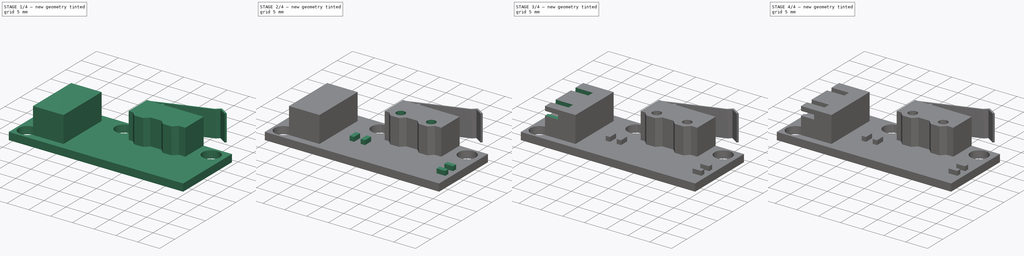
[diagram: build sequence overview — one tinted view per stage of 4, left to right]
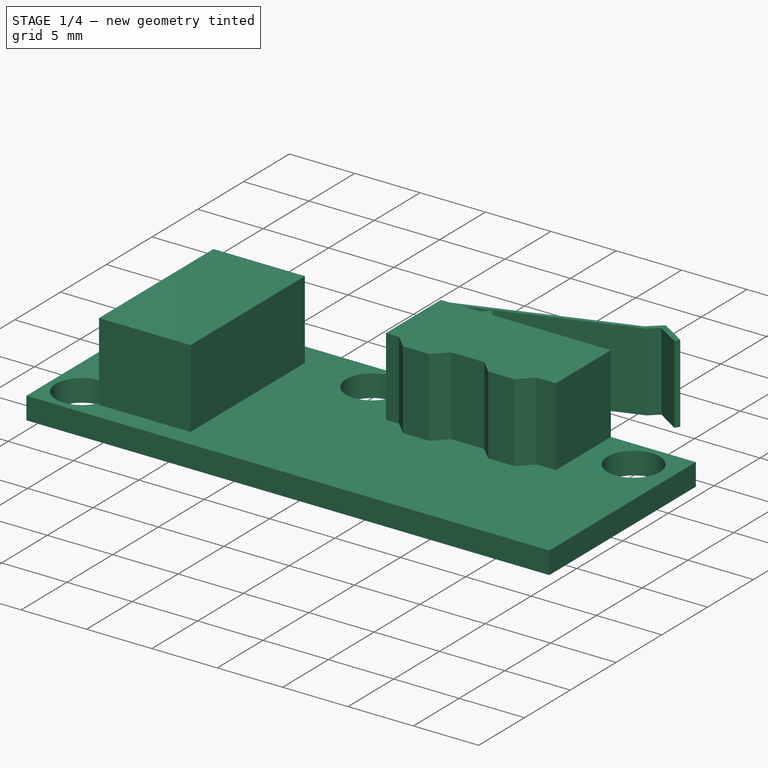
[diagram: stage 1 of 4 — iso view after this stage's code; geometry added in this stage tinted green]
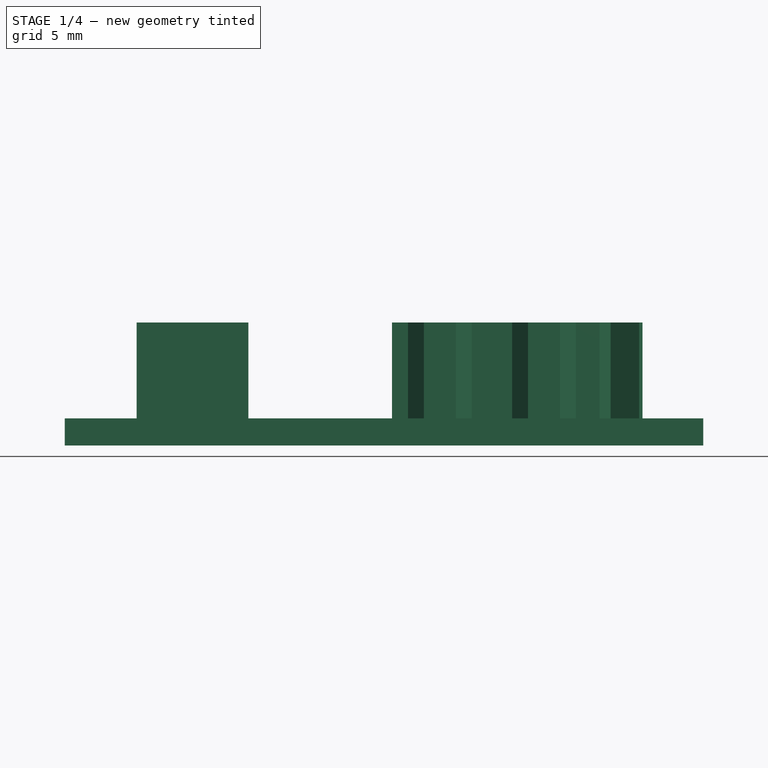
[diagram: stage 1 of 4 — front view after this stage's code; geometry added in this stage tinted green]
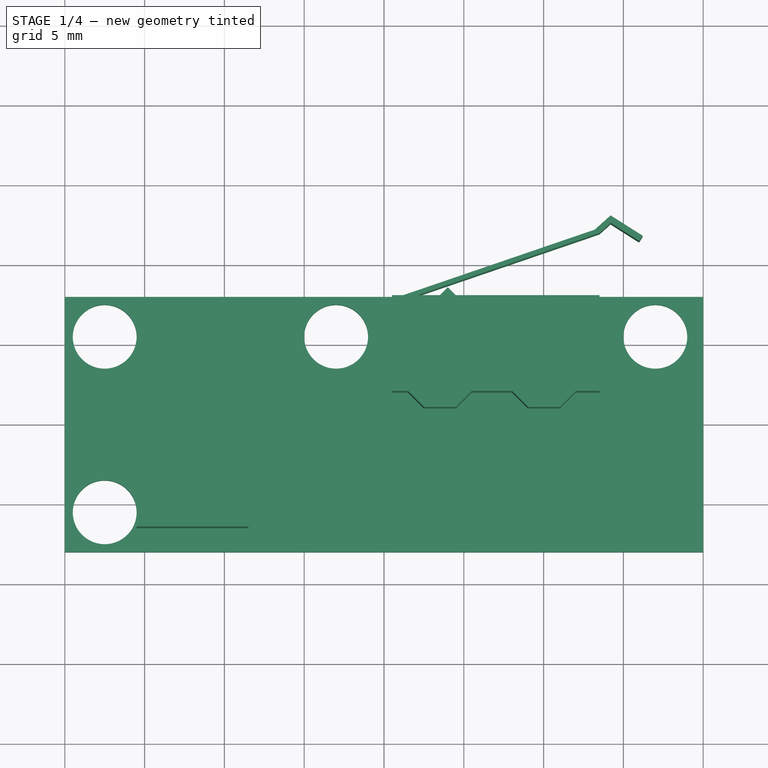
[diagram: stage 1 of 4 — top view after this stage's code; geometry added in this stage tinted green]
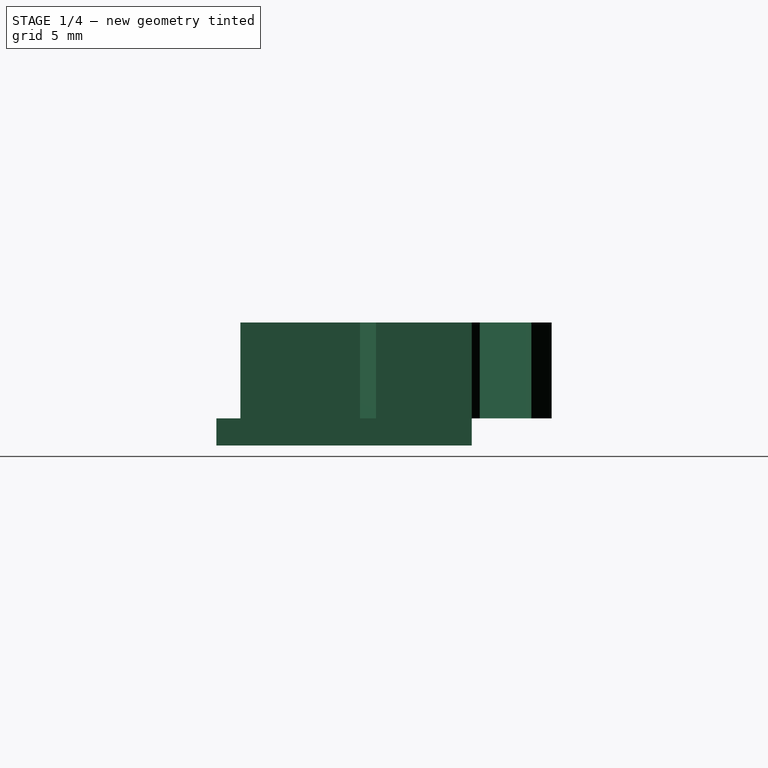
[diagram: stage 1 of 4 — right view after this stage's code; geometry added in this stage tinted green]
FCSTD DOCUMENT  (FreeCAD 0.15R4671 (Git))
Label: endstop-v1-2-makerbot
License: All rights reserved
LicenseURL: http://fr.wikipedia.org/wiki/<copyright redacted>
objects: Sketcher::SketchObject×9, PartDesign::Pad×4, PartDesign::Pocket×4, Part::FeaturePython×1
note: 26 computed .brp shape members not serialized (recipe doc carries the construction recipe); baked Part::Feature solids carry a one-line shape summary decoded from their .brp

FEATURE [Sketcher::SketchObject] Sketch
  sketch-geometry (8):
    g0: LineSegment StartX=-20 StartY=8 StartZ=0 EndX=20 EndY=8 EndZ=0
    g1: LineSegment StartX=20 StartY=8 StartZ=0 EndX=20 EndY=-8 EndZ=0
    g2: LineSegment StartX=20 StartY=-8 StartZ=0 EndX=-20 EndY=-8 EndZ=0
    g3: LineSegment StartX=-20 StartY=-8 StartZ=0 EndX=-20 EndY=8 EndZ=0
    g4: Circle CenterX=-17.5 CenterY=5.5 CenterZ=0 NormalX=0 NormalY=0 NormalZ=1 Radius=2
    g5: Circle CenterX=-17.5 CenterY=-5.5 CenterZ=0 NormalX=0 NormalY=0 NormalZ=1 Radius=2
    g6: Circle CenterX=-3 CenterY=5.5 CenterZ=0 NormalX=0 NormalY=0 NormalZ=1 Radius=2
    g7: Circle CenterX=17 CenterY=5.5 CenterZ=0 NormalX=0 NormalY=0 NormalZ=1 Radius=2
  constraints (24):
    c: Coincident(g0,g1)
    c: Coincident(g1,g2)
    c: Coincident(g2,g3)
    c: Coincident(g3,g0)
    c: Horizontal(g0)
    c: Horizontal(g2)
    c: Vertical(g1)
    c: Vertical(g3)
    c: DistanceX(g0,g0) = 40
    c: DistanceX(g-1,g0) = -20
    c: DistanceY(g2,g0) = 16
    c: DistanceY(g-1,g0) = 8
    c: Equal(g4,g5)
    c: Equal(g5,g6)
    c: Equal(g6,g7)
    c: Radius(g7) = 2
    c: DistanceY(g-1,g4) = 5.5
    c: DistanceY(g-1,g6) = 5.5
    c: DistanceY(g-1,g7) = 5.5
    c: DistanceX(g-1,g4) = -17.5
    c: DistanceX(g-1,g5) = -17.5
    c: DistanceX(g6,g7) = 20
    c: DistanceX(g-1,g7) = 17
    c: DistanceY(g-1,g5) = -5.5
FEATURE [PartDesign::Pad] Pad  label="CI"
  Length = 1.7
  Length2 = 100
  Sketch = -> Sketch
  Type = 0
FEATURE [Sketcher::SketchObject] Sketch001
  Placement = pos=(0,0,1.7) rot=(0,0,1;0rad)
  Support = -> Pad [Face10]
  sketch-geometry (27):
    g0: LineSegment StartX=13.5 StartY=8 StartZ=0 EndX=13.5 EndY=2 EndZ=0
    g1: LineSegment StartX=0.5 StartY=2 StartZ=0 EndX=0.5 EndY=8 EndZ=0
    g2: LineSegment StartX=-15.5 StartY=6 StartZ=0 EndX=-8.5 EndY=6 EndZ=0
    g3: LineSegment StartX=-8.5 StartY=6 StartZ=0 EndX=-8.5 EndY=-6.5 EndZ=0
    g4: LineSegment StartX=-8.5 StartY=-6.5 StartZ=0 EndX=-15.5 EndY=-6.5 EndZ=0
    g5: LineSegment StartX=0.5 StartY=8 StartZ=0 EndX=1.2 EndY=8 EndZ=0
    g6: LineSegment StartX=1.2 StartY=8 StartZ=0 EndX=13.2 EndY=12.1053 EndZ=0
    g7: LineSegment StartX=13.2 StartY=12.1053 StartZ=0 EndX=14.2 EndY=13 EndZ=0
    g8: LineSegment StartX=14.2 StartY=13 StartZ=0 EndX=16.2 EndY=11.7314 EndZ=0
    g9: LineSegment StartX=15.9857 StartY=11.3936 StartZ=0 EndX=14.2 EndY=12.5263 EndZ=0
    g10: LineSegment StartX=14.2 StartY=12.5263 StartZ=0 EndX=13.5 EndY=11.9 EndZ=0
    g11: LineSegment StartX=13.5 StartY=8 StartZ=0 EndX=4.5 EndY=8 EndZ=0
    g12: LineSegment StartX=4.5 StartY=8 StartZ=0 EndX=4 EndY=8.5 EndZ=0
    g13: LineSegment StartX=4 StartY=8.5 StartZ=0 EndX=3.5 EndY=8 EndZ=0
    g14: LineSegment StartX=13.5 StartY=11.9 StartZ=0 EndX=2.1 EndY=8 EndZ=0
    g15: LineSegment StartX=3.5 StartY=8 StartZ=0 EndX=2.1 EndY=8 EndZ=0
    g16: LineSegment StartX=15.9857 StartY=11.3936 StartZ=0 EndX=16.2 EndY=11.7314 EndZ=0
    g17: LineSegment StartX=0.5 StartY=2 StartZ=0 EndX=1.5 EndY=2 EndZ=0
    g18: LineSegment StartX=1.5 StartY=2 StartZ=0 EndX=2.5 EndY=1 EndZ=0
    g19: LineSegment StartX=2.5 StartY=1 StartZ=0 EndX=4.5 EndY=1 EndZ=0
    g20: LineSegment StartX=4.5 StartY=1 StartZ=0 EndX=5.5 EndY=2 EndZ=0
    g21: LineSegment StartX=5.5 StartY=2 StartZ=0 EndX=8.02409 EndY=2 EndZ=0
    g22: LineSegment StartX=8.02409 StartY=2 StartZ=0 EndX=9.02409 EndY=1 EndZ=0
    g23: LineSegment StartX=9.02409 StartY=1 StartZ=0 EndX=11.0241 EndY=1 EndZ=0
    g24: LineSegment StartX=11.0241 StartY=1 StartZ=0 EndX=12.0241 EndY=2 EndZ=0
    g25: LineSegment StartX=12.0241 StartY=2 StartZ=0 EndX=13.5 EndY=2 EndZ=0
    g26: LineSegment StartX=-15.5 StartY=6 StartZ=0 EndX=-15.5 EndY=-6.5 EndZ=0
  constraints (79):
    c: Vertical(g0)
    c: Vertical(g1)
    c: Coincident(g2,g3)
    c: Coincident(g3,g4)
    c: Horizontal(g2)
    c: Horizontal(g4)
    c: Vertical(g3)
    c: DistanceX(g2,g2) = 7
    c: DistanceY(g4,g2) = 12.5
    c: DistanceY(g0,g0) = -6
    c: DistanceY(g-1,g1) = 8
    c: DistanceX(g-1,g1) = 0.5
    c: DistanceX(g-1,g3) = -8.5
    c: DistanceY(g-1,g3) = -6.5
    c: DistanceX(g1,g0) = 13
    c: Coincident(g5,g1)
    c: Horizontal(g5)
    c: DistanceX(g1,g5) = 0.7
    c: Coincident(g6,g5)
    c: Coincident(g7,g6)
    c: Coincident(g8,g7)
    c: Coincident(g11,g0)
    c: Horizontal(g11)
    c: DistanceX(g11,g0) = 9
    c: Coincident(g13,g12)
    c: Coincident(g14,g10)
    c: Coincident(g15,g13)
    c: Horizontal(g15)
    c: Coincident(g15,g14)
    c: DistanceY(g14,g1) = -6
    c: Parallel(g6,g14)
    c: Parallel(g9,g8)
    c: Parallel(g7,g10)
    c: Coincident(g10,g9)
    c: DistanceY(g7,g0) = -5
    c: DistanceX(g5,g7) = 13
    c: DistanceY(g1,g1) = -6
    c: DistanceX(g7,g8) = 2
    c: Coincident(g16,g9)
    c: Coincident(g16,g8)
    c: Perpendicular(g8,g16)
    c: Distance(g9,g8) = 0.4
    c: DistanceX(g13,g12) = 0.5
    c: DistanceX(g12,g11) = 0.5
    c: DistanceY(g12,g11) = -0.5
    c: DistanceX(g5,g9) = 13
    c: DistanceX(g14,g13) = 1.4
    c: DistanceX(g14,g10) = 11.4
    c: DistanceX(g5,g6) = 12
    c: DistanceY(g10,g0) = -3.9
    c: Coincident(g17,g1)
    c: Horizontal(g17)
    c: Coincident(g18,g17)
    c: Coincident(g19,g18)
    c: Horizontal(g19)
    c: Coincident(g20,g19)
    c: Coincident(g21,g20)
    c: Horizontal(g21)
    c: Coincident(g22,g21)
    c: Coincident(g23,g22)
    c: Horizontal(g23)
    c: Coincident(g24,g23)
    c: Coincident(g25,g24)
    c: Coincident(g25,g0)
    c: Horizontal(g25)
    c: Equal(g22,g24)
    c: Equal(g24,g20)
    c: Equal(g20,g18)
    c: Equal(g19,g23)
    c: DistanceX(g18,g19) = 2
    c: DistanceY(g17,g18) = -1
    c: DistanceX(g17,g18) = 1
    c: DistanceY(g19,g20) = 1
    c: DistanceY(g21,g22) = -1
    c: DistanceY(g24,g23) = -1
    c: DistanceX(g-1,g17) = 1.5
    c: Coincident(g26,g2)
    c: Vertical(g26)
    c: Coincident(g26,g4)
FEATURE [PartDesign::Pad] Pad001  label="Connect-Switch"
  Length = 6
  Length2 = 100
  Sketch = -> Sketch001
  Type = 0
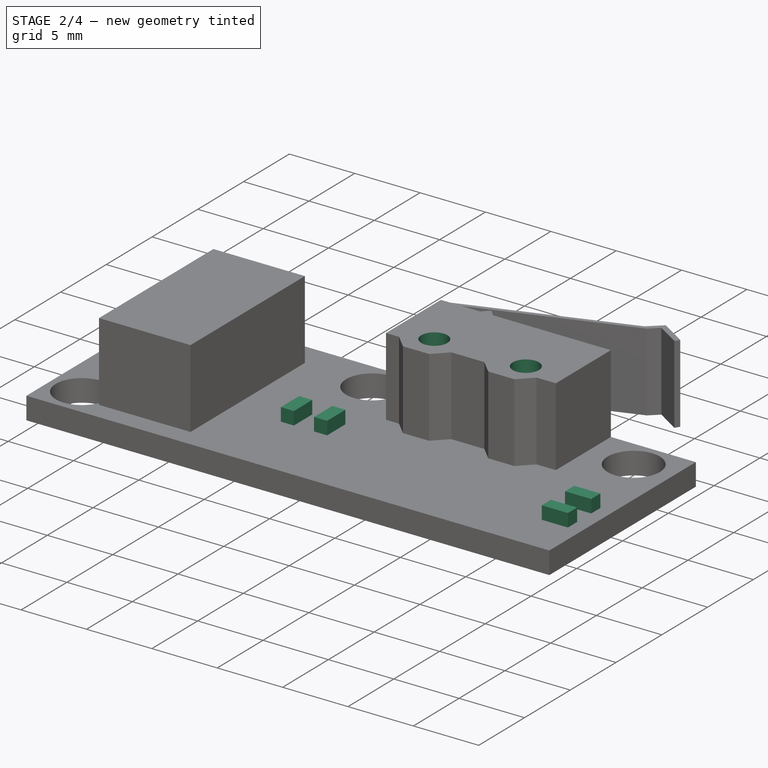
[diagram: stage 2 of 4 — iso view after this stage's code; geometry added in this stage tinted green]
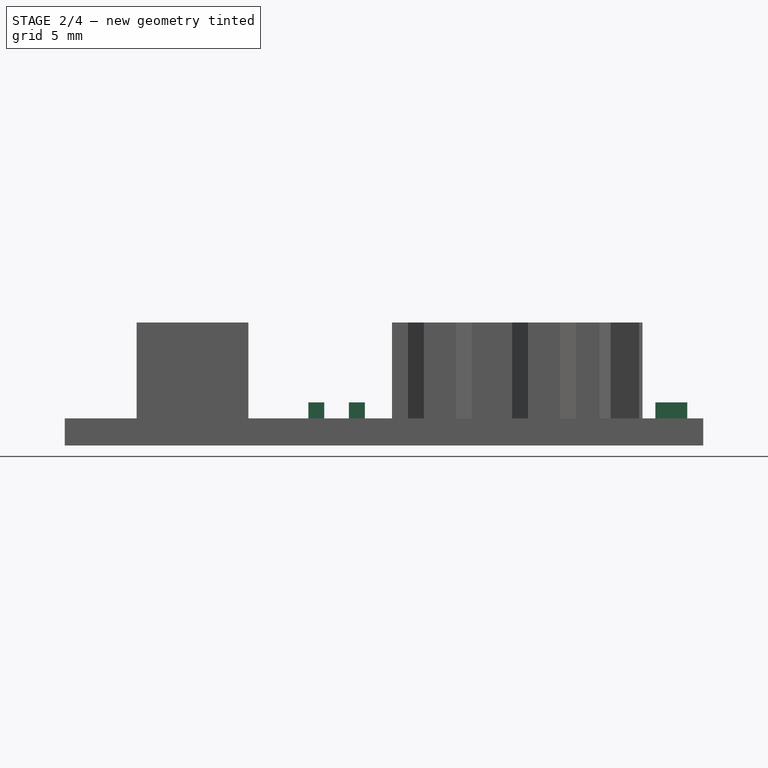
[diagram: stage 2 of 4 — front view after this stage's code; geometry added in this stage tinted green]
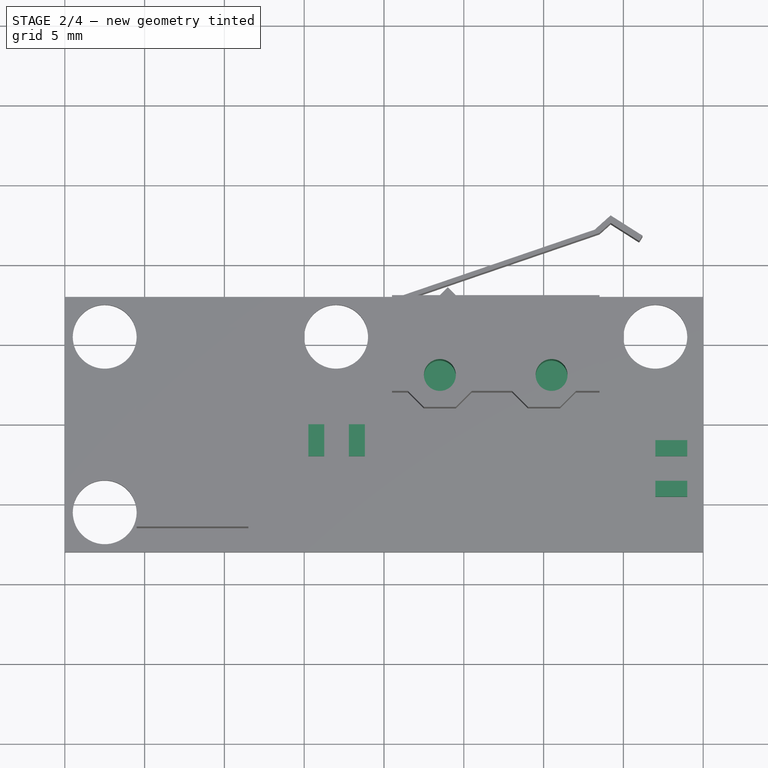
[diagram: stage 2 of 4 — top view after this stage's code; geometry added in this stage tinted green]
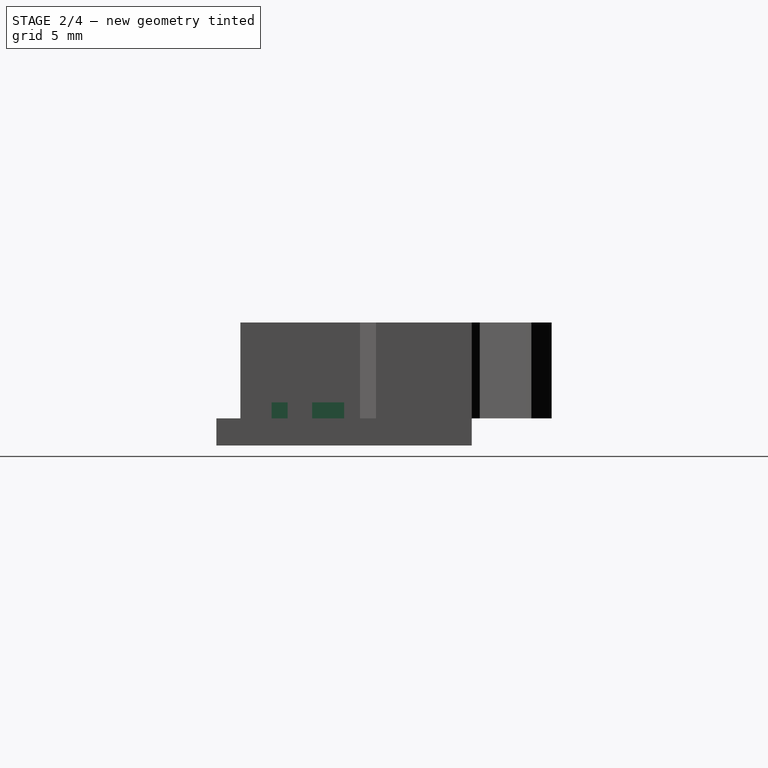
[diagram: stage 2 of 4 — right view after this stage's code; geometry added in this stage tinted green]
FEATURE [Sketcher::SketchObject] Sketch002
  Placement = pos=(0,0,1.7) rot=(0,0,1;0rad)
  Support = -> Pad001 [Face5]
  sketch-geometry (16):
    g0: LineSegment StartX=-4.74 StartY=0 StartZ=0 EndX=-3.74 EndY=0 EndZ=0
    g1: LineSegment StartX=-3.74 StartY=0 StartZ=0 EndX=-3.74 EndY=-2 EndZ=0
    g2: LineSegment StartX=-3.74 StartY=-2 StartZ=0 EndX=-4.74 EndY=-2 EndZ=0
    g3: LineSegment StartX=-4.74 StartY=-2 StartZ=0 EndX=-4.74 EndY=0 EndZ=0
    g4: LineSegment StartX=-2.2 StartY=0 StartZ=0 EndX=-1.2 EndY=0 EndZ=0
    g5: LineSegment StartX=-1.2 StartY=0 StartZ=0 EndX=-1.2 EndY=-2 EndZ=0
    g6: LineSegment StartX=-1.2 StartY=-2 StartZ=0 EndX=-2.2 EndY=-2 EndZ=0
    g7: LineSegment StartX=-2.2 StartY=-2 StartZ=0 EndX=-2.2 EndY=0 EndZ=0
    g8: LineSegment StartX=17 StartY=-1 StartZ=0 EndX=19 EndY=-1 EndZ=0
    g9: LineSegment StartX=19 StartY=-1 StartZ=0 EndX=19 EndY=-2 EndZ=0
    g10: LineSegment StartX=19 StartY=-2 StartZ=0 EndX=17 EndY=-2 EndZ=0
    g11: LineSegment StartX=17 StartY=-2 StartZ=0 EndX=17 EndY=-1 EndZ=0
    g12: LineSegment StartX=17 StartY=-3.54 StartZ=0 EndX=19 EndY=-3.54 EndZ=0
    g13: LineSegment StartX=19 StartY=-3.54 StartZ=0 EndX=19 EndY=-4.54 EndZ=0
    g14: LineSegment StartX=19 StartY=-4.54 StartZ=0 EndX=17 EndY=-4.54 EndZ=0
    g15: LineSegment StartX=17 StartY=-4.54 StartZ=0 EndX=17 EndY=-3.54 EndZ=0
  constraints (48):
    c: Coincident(g0,g1)
    c: Coincident(g1,g2)
    c: Coincident(g2,g3)
    c: Coincident(g3,g0)
    c: Horizontal(g0)
    c: Horizontal(g2)
    c: Vertical(g1)
    c: Vertical(g3)
    c: Coincident(g4,g5)
    c: Coincident(g5,g6)
    c: Coincident(g6,g7)
    c: Coincident(g7,g4)
    c: Horizontal(g4)
    c: Horizontal(g6)
    c: Vertical(g5)
    c: Vertical(g7)
    c: Coincident(g8,g9)
    c: Coincident(g9,g10)
    c: Coincident(g10,g11)
    c: Coincident(g11,g8)
    c: Horizontal(g8)
    c: Horizontal(g10)
    c: Vertical(g9)
    c: Vertical(g11)
    c: Coincident(g12,g13)
    c: Coincident(g13,g14)
    c: Coincident(g14,g15)
    c: Coincident(g15,g12)
    c: Horizontal(g12)
    c: Horizontal(g14)
    c: Vertical(g13)
    c: Vertical(g15)
    c: Equal(g0,g4)
    c: Equal(g4,g9)
    c: Equal(g9,g13)
    c: Equal(g3,g7)
    c: Equal(g7,g10)
    c: Equal(g10,g12)
    c: DistanceX(g-1,g8) = 17
    c: DistanceX(g4,g4) = 1
    c: DistanceY(g5,g4) = 2
    c: DistanceY(g-1,g5) = -2
    c: DistanceY(g-1,g1) = -2
    c: DistanceX(g-1,g12) = 17
    c: DistanceX(g0,g4) = 1.54
    c: DistanceY(g12,g9) = 1.54
    c: DistanceY(g-1,g8) = -1
    c: DistanceX(g-1,g4) = -1.2
FEATURE [PartDesign::Pad] Pad002  label="CMS"
  Length = 1
  Length2 = 100
  Sketch = -> Sketch002
  Type = 0
FEATURE [Sketcher::SketchObject] Sketch003
  Placement = pos=(0,-3.54,0) rot=(0,0.707107,0.707107;3.14159rad)
  Support = -> Pad002 [Face39]
FEATURE [Sketcher::SketchObject] Sketch004
  Placement = pos=(0,0,7.7) rot=(0,0,1;0rad)
  Support = -> Pad002 [Face47]
  sketch-geometry (2):
    g0: Circle CenterX=3.5 CenterY=3 CenterZ=0 NormalX=0 NormalY=0 NormalZ=1 Radius=1
    g1: Circle CenterX=10.5 CenterY=3 CenterZ=0 NormalX=0 NormalY=0 NormalZ=1 Radius=1
  constraints (6):
    c: Equal(g0,g1)
    c: Radius(g1) = 1
    c: DistanceY(g-1,g0) = 3
    c: DistanceY(g-1,g1) = 3
    c: DistanceX(g0,g1) = 7
    c: DistanceX(g-1,g0) = 3.5
FEATURE [PartDesign::Pocket] Pocket  label="Trou-Switch"
  Length = 6
  Sketch = -> Sketch004
  Type = 0
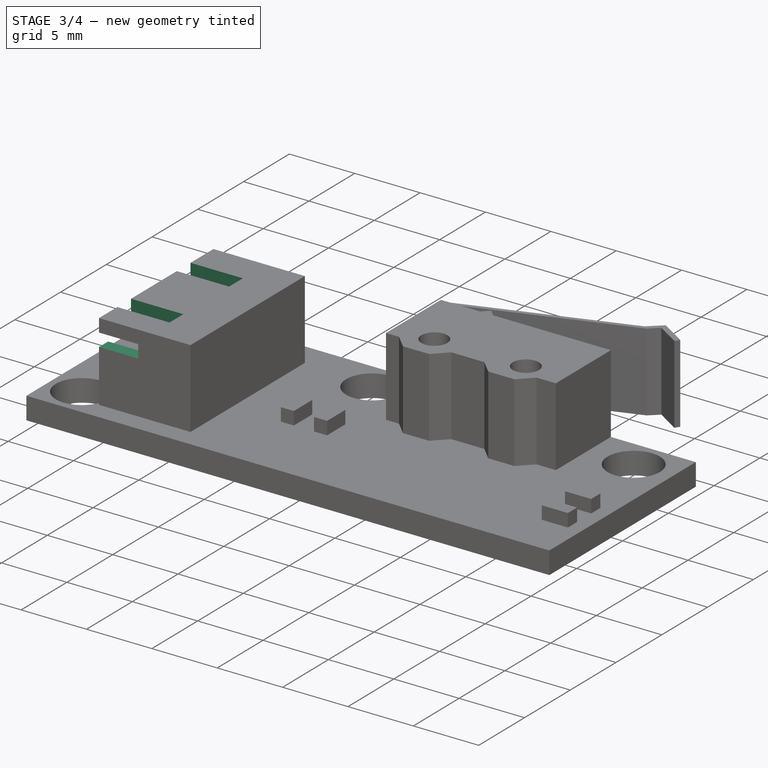
[diagram: stage 3 of 4 — iso view after this stage's code; geometry added in this stage tinted green]
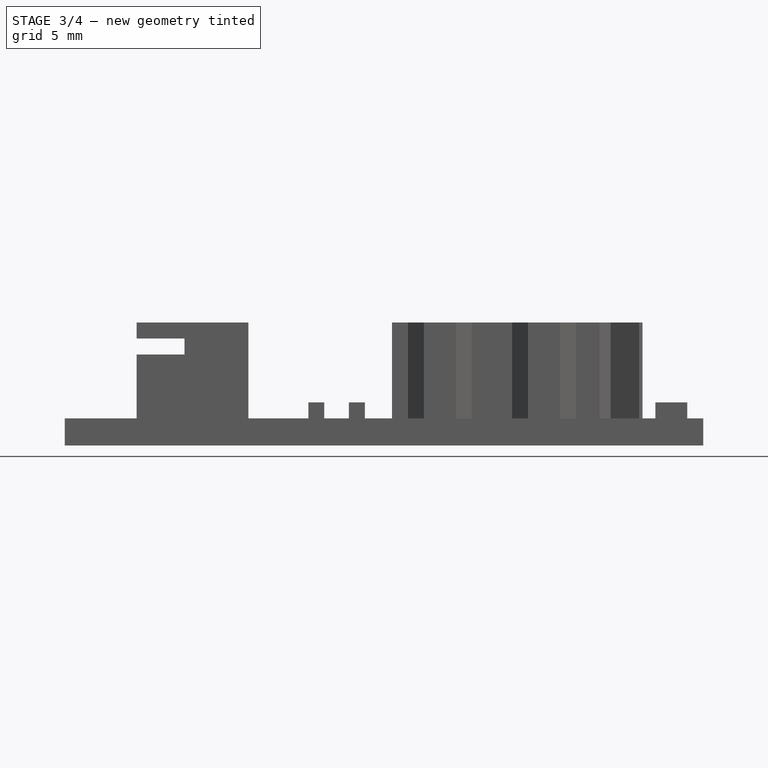
[diagram: stage 3 of 4 — front view after this stage's code; geometry added in this stage tinted green]
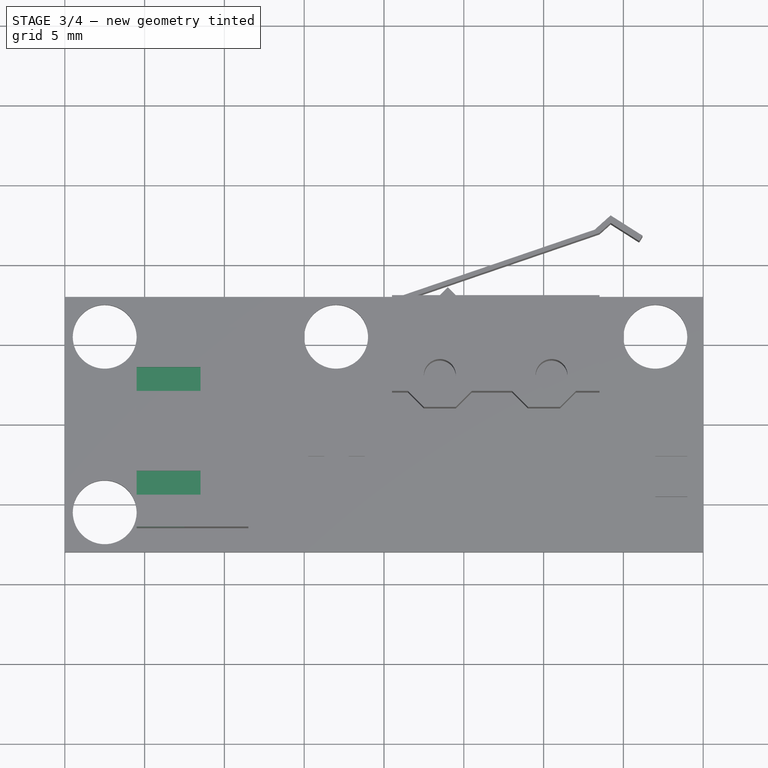
[diagram: stage 3 of 4 — top view after this stage's code; geometry added in this stage tinted green]
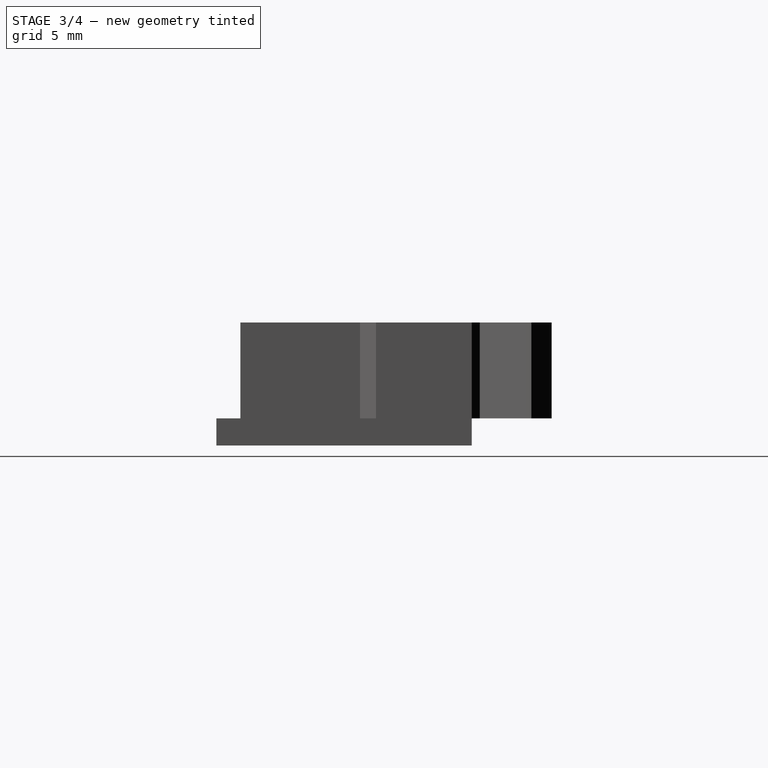
[diagram: stage 3 of 4 — right view after this stage's code; geometry added in this stage tinted green]
FEATURE [Sketcher::SketchObject] Sketch005
  ExternalGeometry = -> [Pocket]
  Placement = pos=(0,0,7.7) rot=(0,0,1;0rad)
  Support = -> Pocket [Face61]
  sketch-geometry (8):
    g0: LineSegment StartX=-15.5 StartY=3.5 StartZ=0 EndX=-11.5 EndY=3.5 EndZ=0
    g1: LineSegment StartX=-11.5 StartY=3.5 StartZ=0 EndX=-11.5 EndY=2 EndZ=0
    g2: LineSegment StartX=-11.5 StartY=2 StartZ=0 EndX=-15.5 EndY=2 EndZ=0
    g3: LineSegment StartX=-15.5 StartY=2 StartZ=0 EndX=-15.5 EndY=3.5 EndZ=0
    g4: LineSegment StartX=-15.5 StartY=-3 StartZ=0 EndX=-11.5 EndY=-3 EndZ=0
    g5: LineSegment StartX=-11.5 StartY=-3 StartZ=0 EndX=-11.5 EndY=-4.5 EndZ=0
    g6: LineSegment StartX=-11.5 StartY=-4.5 StartZ=0 EndX=-15.5 EndY=-4.5 EndZ=0
    g7: LineSegment StartX=-15.5 StartY=-4.5 StartZ=0 EndX=-15.5 EndY=-3 EndZ=0
  constraints (24):
    c: Coincident(g0,g1)
    c: Coincident(g1,g2)
    c: Coincident(g2,g3)
    c: Coincident(g3,g0)
    c: Horizontal(g0)
    c: Horizontal(g2)
    c: Vertical(g1)
    c: Vertical(g3)
    c: Coincident(g4,g5)
    c: Coincident(g5,g6)
    c: Coincident(g6,g7)
    c: Coincident(g7,g4)
    c: Horizontal(g4)
    c: Horizontal(g6)
    c: Vertical(g5)
    c: Vertical(g7)
    c: DistanceY(g4,g2) = 5
    c: Equal(g4,g2)
    c: Equal(g1,g5)
    c: DistanceY(g5,g4) = 1.5
    c: PointOnObject(g6,g-3)
    c: PointOnObject(g2,g-3)
    c: DistanceY(g0,g-3) = 2.5
    c: DistanceX(g4,g4) = 4
FEATURE [PartDesign::Pocket] Pocket001
  Length = 5
  Sketch = -> Sketch005
  Type = 0
FEATURE [Sketcher::SketchObject] Sketch006
  ExternalGeometry = -> [Pocket001]
  Placement = pos=(-15.5,0,0) rot=(0.57735,-0.57735,-0.57735;2.0944rad)
  Support = -> Pocket001 [Face43]
  sketch-geometry (4):
    g0: LineSegment StartX=-5 StartY=6.7 StartZ=0 EndX=5.5 EndY=6.7 EndZ=0
    g1: LineSegment StartX=5.5 StartY=6.7 StartZ=0 EndX=5.5 EndY=2.7 EndZ=0
    g2: LineSegment StartX=5.5 StartY=2.7 StartZ=0 EndX=-5 EndY=2.7 EndZ=0
    g3: LineSegment StartX=-5 StartY=2.7 StartZ=0 EndX=-5 EndY=6.7 EndZ=0
  constraints (12):
    c: Coincident(g0,g1)
    c: Coincident(g1,g2)
    c: Coincident(g2,g3)
    c: Coincident(g3,g0)
    c: Horizontal(g0)
    c: Horizontal(g2)
    c: Vertical(g1)
    c: Vertical(g3)
    c: DistanceY(g0,g-4) = 1
    c: PointOnObject(g-3,g2)
    c: DistanceX(g0,g-4) = -1
    c: DistanceX(g0,g-5) = 1
FEATURE [PartDesign::Pocket] Pocket002
  Length = 6
  Sketch = -> Sketch006
  Type = 0
FEATURE [Sketcher::SketchObject] Sketch007
  ExternalGeometry = -> [Pocket002]
  Placement = pos=(0,-6.5,0) rot=(1,0,0;1.5708rad)
  Support = -> Pocket002 [Face44]
  sketch-geometry (4):
    g0: LineSegment StartX=-15.5 StartY=6.7 StartZ=0 EndX=-12.5 EndY=6.7 EndZ=0
    g1: LineSegment StartX=-12.5 StartY=6.7 StartZ=0 EndX=-12.5 EndY=5.7 EndZ=0
    g2: LineSegment StartX=-12.5 StartY=5.7 StartZ=0 EndX=-15.5 EndY=5.7 EndZ=0
    g3: LineSegment StartX=-15.5 StartY=5.7 StartZ=0 EndX=-15.5 EndY=6.7 EndZ=0
  constraints (12):
    c: Coincident(g0,g1)
    c: Coincident(g1,g2)
    c: Coincident(g2,g3)
    c: Coincident(g3,g0)
    c: Horizontal(g0)
    c: Horizontal(g2)
    c: Vertical(g1)
    c: Vertical(g3)
    c: PointOnObject(g0,g-3)
    c: DistanceY(g0,g-3) = 1
    c: DistanceX(g0,g0) = 3
    c: DistanceY(g1,g0) = 1
FEATURE [PartDesign::Pocket] Pocket003
  Length = 5
  Sketch = -> Sketch007
  Type = 1
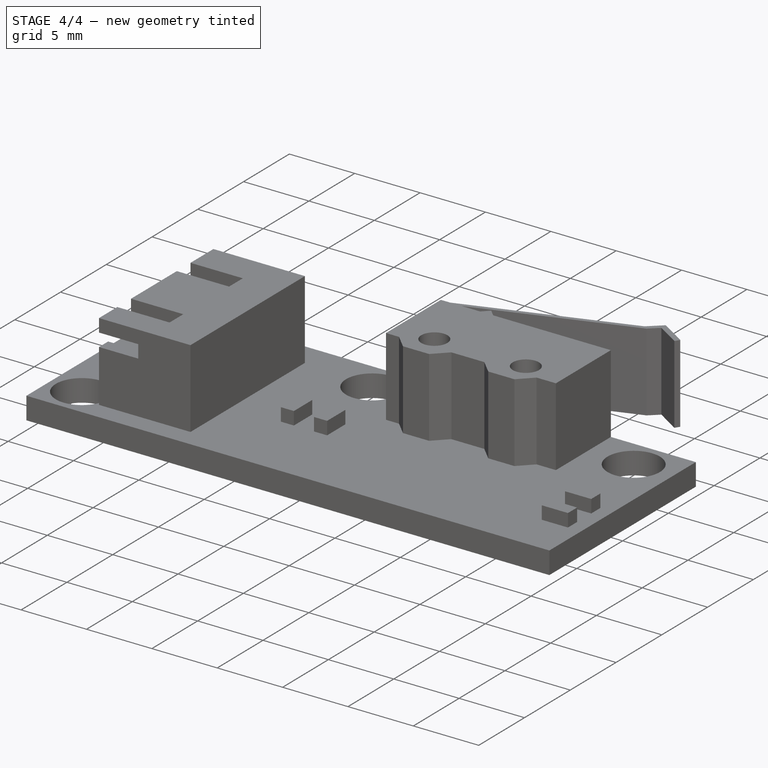
[diagram: stage 4 of 4 — iso view after this stage's code; geometry added in this stage tinted green]
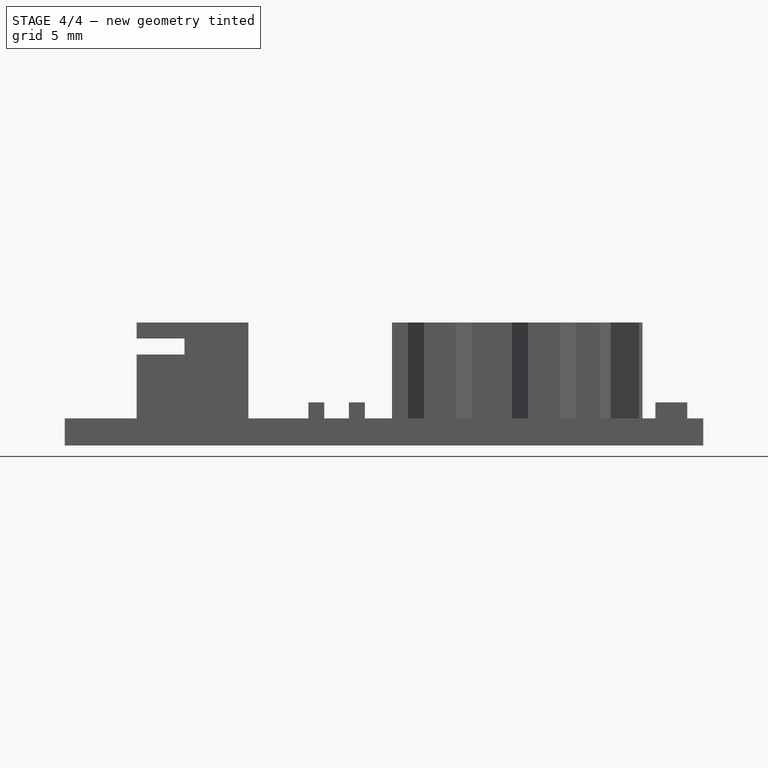
[diagram: stage 4 of 4 — front view after this stage's code; geometry added in this stage tinted green]
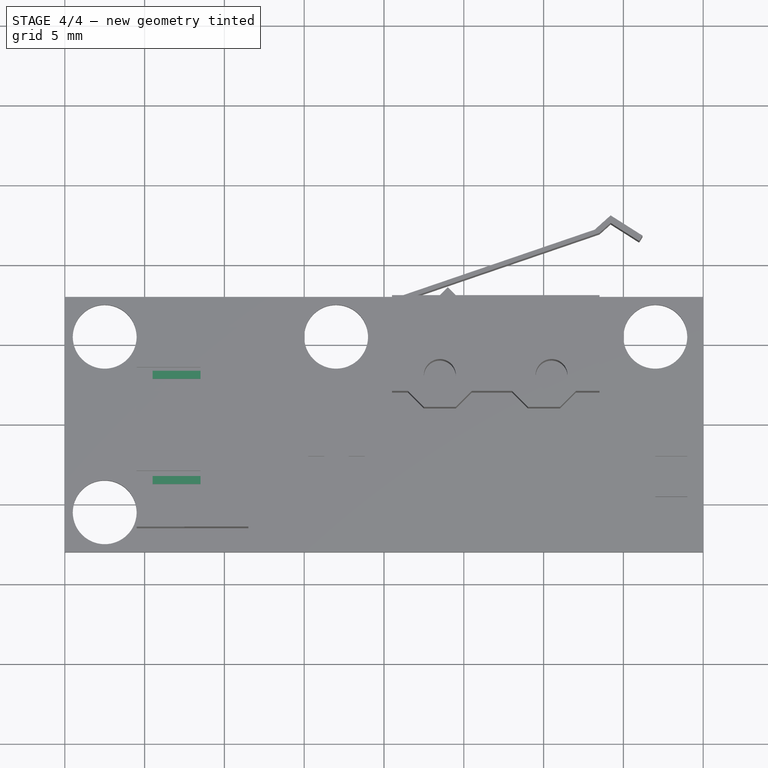
[diagram: stage 4 of 4 — top view after this stage's code; geometry added in this stage tinted green]
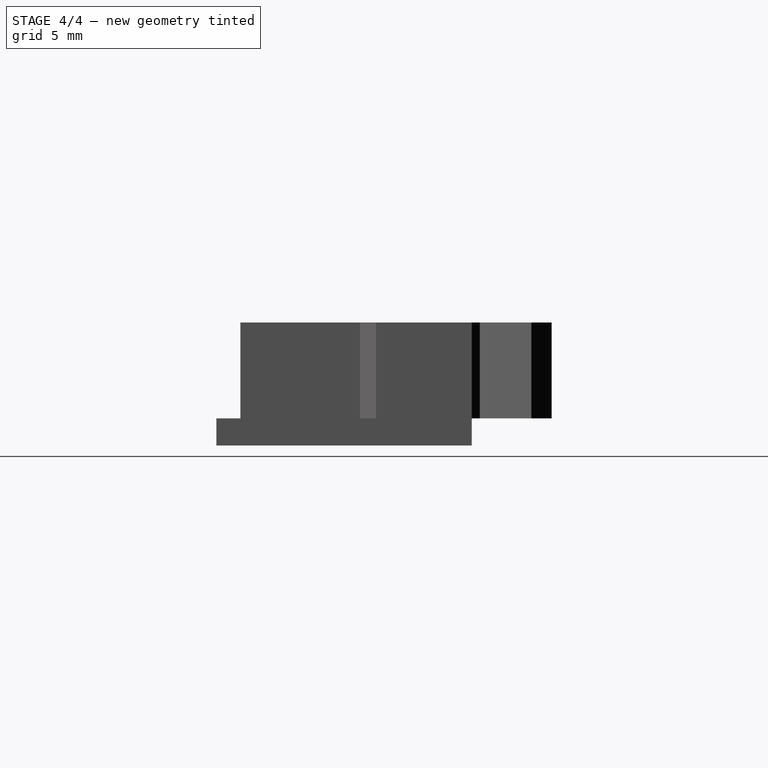
[diagram: stage 4 of 4 — right view after this stage's code; geometry added in this stage tinted green]
FEATURE [Sketcher::SketchObject] Sketch008
  ExternalGeometry = -> [Pocket003]
  Placement = pos=(-9.5,0,0) rot=(0.57735,-0.57735,-0.57735;2.0944rad)
  Support = -> Pocket003 [Face77]
  sketch-geometry (16):
    g0: LineSegment StartX=-3.3 StartY=5.7 StartZ=0 EndX=-2.8 EndY=5.7 EndZ=0
    g1: LineSegment StartX=-2.8 StartY=5.7 StartZ=0 EndX=-2.8 EndY=5.2 EndZ=0
    g2: LineSegment StartX=-2.8 StartY=5.2 StartZ=0 EndX=-3.3 EndY=5.2 EndZ=0
    g3: LineSegment StartX=-3.3 StartY=5.2 StartZ=0 EndX=-3.3 EndY=5.7 EndZ=0
    g4: LineSegment StartX=-1.1 StartY=5.7 StartZ=0 EndX=-0.6 EndY=5.7 EndZ=0
    g5: LineSegment StartX=-0.6 StartY=5.7 StartZ=0 EndX=-0.6 EndY=5.2 EndZ=0
    g6: LineSegment StartX=-0.6 StartY=5.2 StartZ=0 EndX=-1.1 EndY=5.2 EndZ=0
    g7: LineSegment StartX=-1.1 StartY=5.2 StartZ=0 EndX=-1.1 EndY=5.7 EndZ=0
    g8: LineSegment StartX=1.1 StartY=5.7 StartZ=0 EndX=1.6 EndY=5.7 EndZ=0
    g9: LineSegment StartX=1.6 StartY=5.7 StartZ=0 EndX=1.6 EndY=5.2 EndZ=0
    g10: LineSegment StartX=1.6 StartY=5.2 StartZ=0 EndX=1.1 EndY=5.2 EndZ=0
    g11: LineSegment StartX=1.1 StartY=5.2 StartZ=0 EndX=1.1 EndY=5.7 EndZ=0
    g12: LineSegment StartX=3.3 StartY=5.7 StartZ=0 EndX=3.8 EndY=5.7 EndZ=0
    g13: LineSegment StartX=3.8 StartY=5.7 StartZ=0 EndX=3.8 EndY=5.2 EndZ=0
    g14: LineSegment StartX=3.8 StartY=5.2 StartZ=0 EndX=3.3 EndY=5.2 EndZ=0
    g15: LineSegment StartX=3.3 StartY=5.2 StartZ=0 EndX=3.3 EndY=5.7 EndZ=0
  constraints (48):
    c: Coincident(g0,g1)
    c: Coincident(g1,g2)
    c: Coincident(g2,g3)
    c: Coincident(g3,g0)
    c: Horizontal(g0)
    c: Horizontal(g2)
    c: Vertical(g1)
    c: Vertical(g3)
    c: Coincident(g4,g5)
    c: Coincident(g5,g6)
    c: Coincident(g6,g7)
    c: Coincident(g7,g4)
    c: Horizontal(g4)
    c: Horizontal(g6)
    c: Vertical(g5)
    c: Vertical(g7)
    c: Coincident(g8,g9)
    c: Coincident(g9,g10)
    c: Coincident(g10,g11)
    c: Coincident(g11,g8)
    c: Horizontal(g8)
    c: Horizontal(g10)
    c: Vertical(g9)
    c: Vertical(g11)
    c: Coincident(g12,g13)
    c: Coincident(g13,g14)
    c: Coincident(g14,g15)
    c: Coincident(g15,g12)
    c: Horizontal(g12)
    c: Horizontal(g14)
    c: Vertical(g13)
    c: Vertical(g15)
    c: Equal(g0,g4)
    c: Equal(g4,g8)
    c: Equal(g8,g12)
    c: Equal(g12,g15)
    c: Equal(g15,g11)
    c: Equal(g11,g7)
    c: Equal(g7,g3)
    c: DistanceY(g-4,g0) = 0
    c: DistanceY(g4,g-4) = 0
    c: DistanceX(g0,g0) = 0.5
    c: DistanceY(g8,g-4) = 0
    c: DistanceY(g12,g-4) = 0
    c: DistanceX(g-4,g0) = 1.7
    c: DistanceX(g0,g4) = 1.7
    c: DistanceX(g4,g8) = 1.7
    c: DistanceX(g8,g12) = 1.7
FEATURE [PartDesign::Pad] Pad003
  Length = 5
  Length2 = 100
  Sketch = -> Sketch008
  Type = 0
FEATURE [Part::FeaturePython] refine  label="refine_Pad003"  # WARN: FeaturePython — macro-defined, semantics opaque (R4)
  Base = -> Pad003
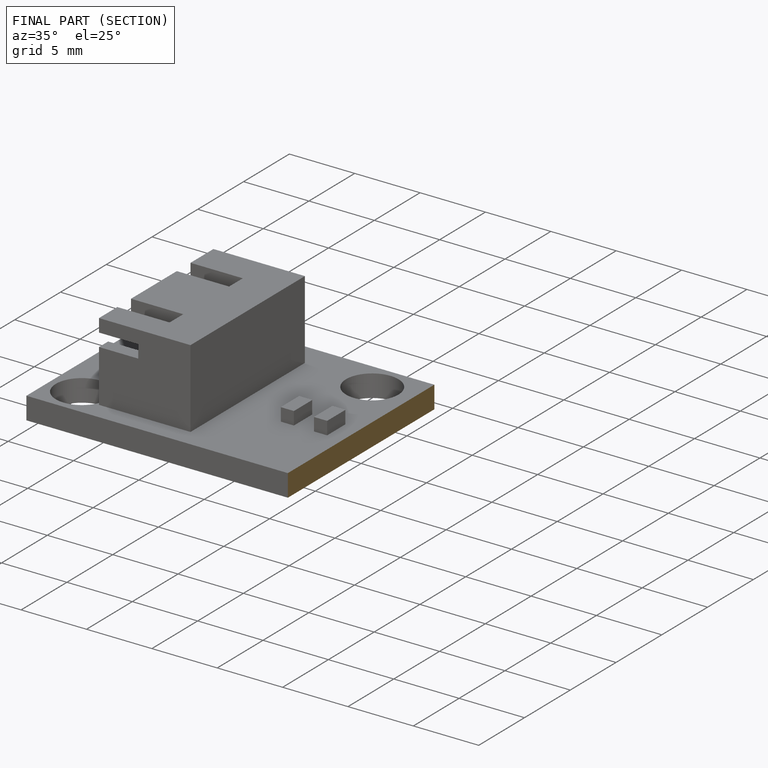
[diagram: finished part — half-section view (interior)]
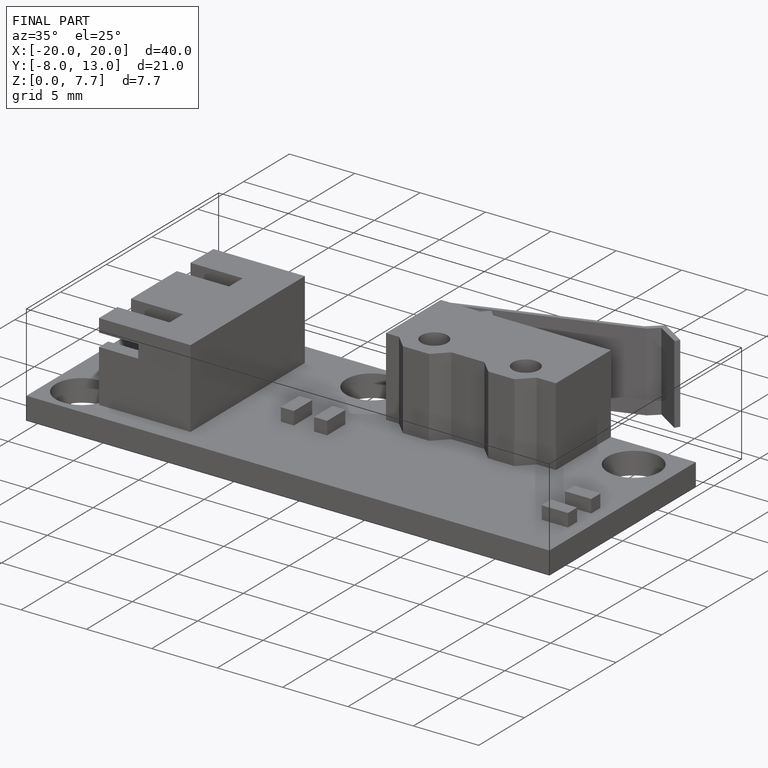
[diagram: finished part — iso view with bounding-box wireframe]
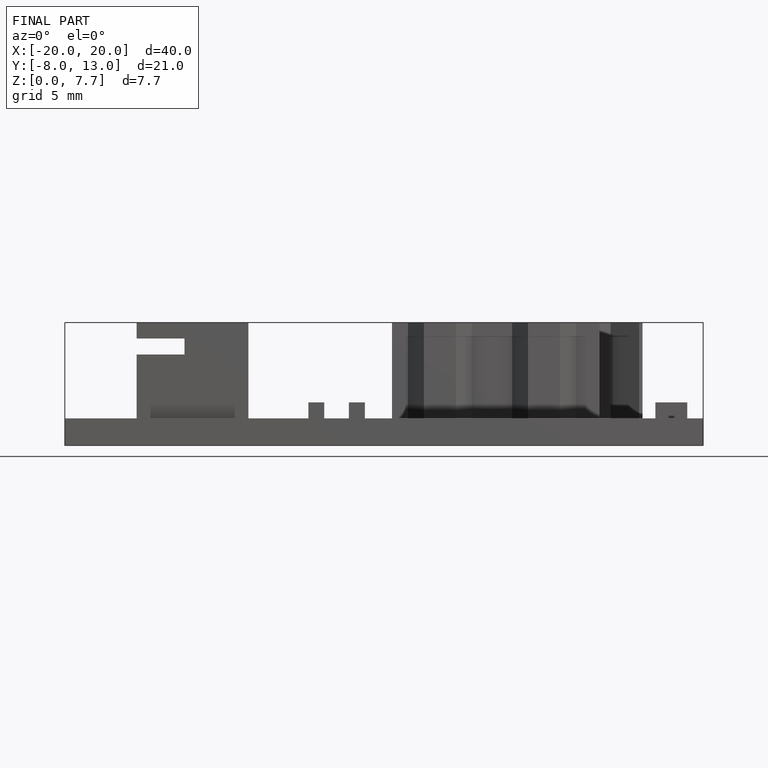
[diagram: finished part — front view with bounding-box wireframe]
